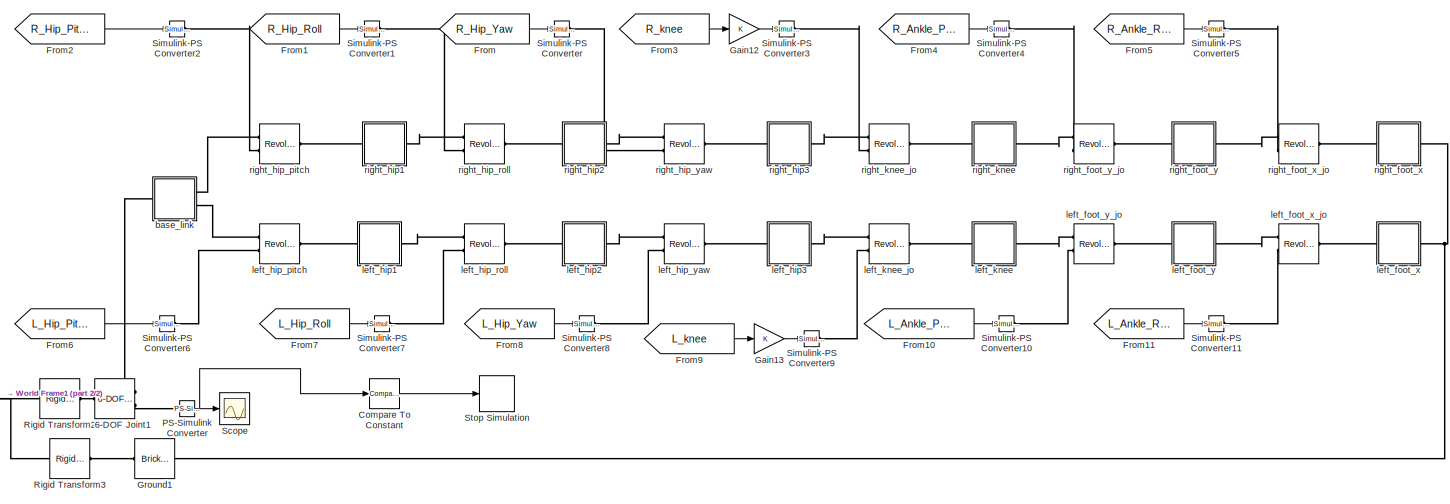
[diagram: root canvas - part 1/2, center side, full height]
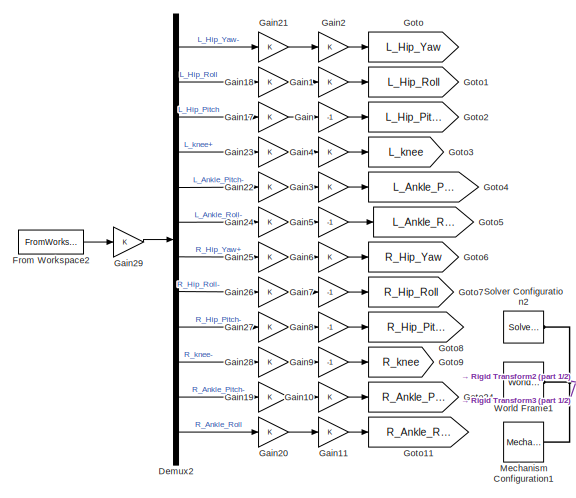
[diagram: root canvas - part 2/2, left side, full height]
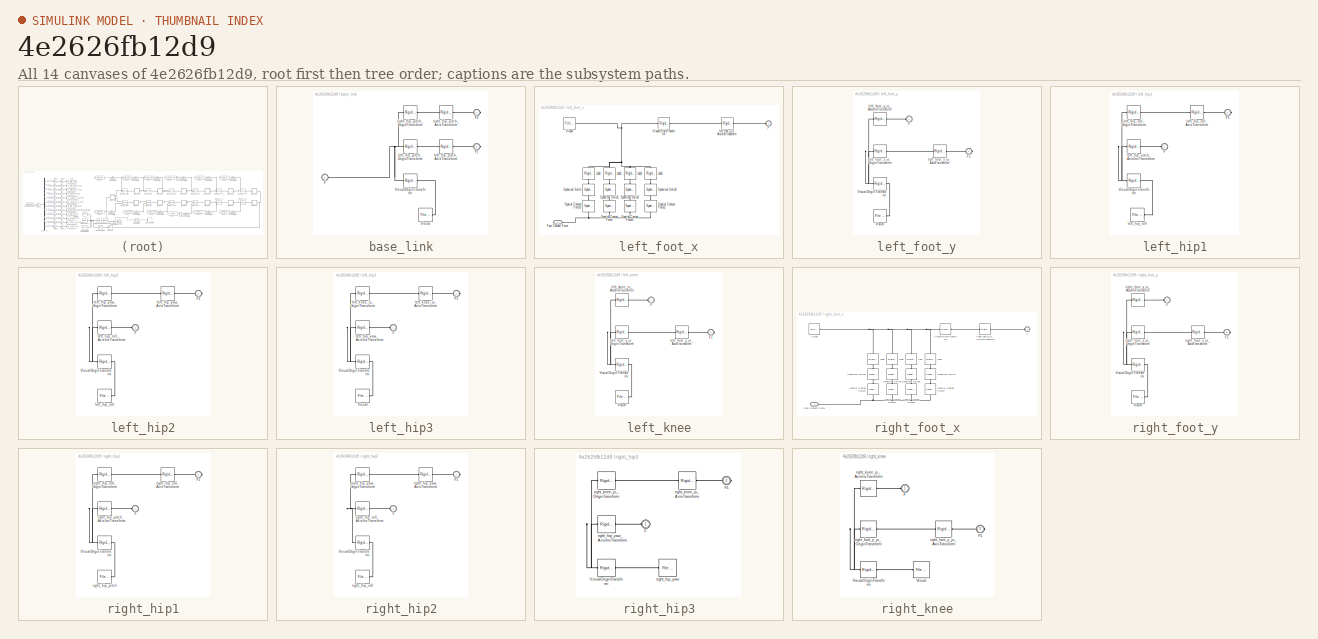
[diagram: thumbnail index - all 14 canvases of the model, root first then tree order]
MODEL slx_4e2626fb12d9
KIND model
CONFIG AbsTol = auto
CONFIG EnableMultiTasking = off
CONFIG FixedStep = auto
CONFIG MaxStep = auto
CONFIG MinStep = auto
CONFIG RelTol = 1e-3
CONFIG SampleTimeConstraint = Unconstrained
CONFIG SolverName = VariableStepAuto
CONFIG StartTime = 0.0
CONFIG StopTime = 10
BLOCK [Reference] 6-DOF Joint1  REF=sm_lib/Joints/6-DOF Joint
  Ports = [0, 0, 0, 0, 0, 1, 2]
  SourceBlock = sm_lib/Joints/6-DOF Joint
  SourceType = 6-DOF Joint
BLOCK [Reference] Compare To Constant  REF=simulink/Logic and Bit
Operations/Compare
To Constant
  Ports = [1, 1]
  SourceBlock = simulink/Logic and Bit\nOperations/Compare\nTo Constant
  SourceType = Compare To Constant
BLOCK [Demux] Demux2
  Outputs = 12
  Ports = [1, 12]
BLOCK [From] From
  GotoTag = R_Hip_Yaw
BLOCK [FromWorkspace] From Workspace2
  VariableName = q
BLOCK [From] From1
  GotoTag = R_Hip_Roll
BLOCK [From] From10
  GotoTag = L_Ankle_Pitch
BLOCK [From] From11
  GotoTag = L_Ankle_Roll
BLOCK [From] From2
  GotoTag = R_Hip_Pitch
BLOCK [From] From3
  GotoTag = R_knee
BLOCK [From] From4
  GotoTag = R_Ankle_Pitch
BLOCK [From] From5
  GotoTag = R_Ankle_Roll
BLOCK [From] From6
  GotoTag = L_Hip_Pitch
BLOCK [From] From7
  GotoTag = L_Hip_Roll
BLOCK [From] From8
  GotoTag = L_Hip_Yaw
BLOCK [From] From9
  GotoTag = L_knee
BLOCK [Gain] Gain
  Gain = -1
BLOCK [Gain] Gain1
BLOCK [Gain] Gain10
BLOCK [Gain] Gain11
BLOCK [Gain] Gain12
BLOCK [Gain] Gain13
BLOCK [Gain] Gain17
BLOCK [Gain] Gain18
BLOCK [Gain] Gain19
BLOCK [Gain] Gain2
BLOCK [Gain] Gain20
BLOCK [Gain] Gain21
BLOCK [Gain] Gain22
BLOCK [Gain] Gain23
BLOCK [Gain] Gain24
BLOCK [Gain] Gain25
BLOCK [Gain] Gain26
BLOCK [Gain] Gain27
BLOCK [Gain] Gain28
BLOCK [Gain] Gain29
BLOCK [Gain] Gain3
BLOCK [Gain] Gain4
BLOCK [Gain] Gain5
  Gain = -1
BLOCK [Gain] Gain6
BLOCK [Gain] Gain7
  Gain = -1
BLOCK [Gain] Gain8
  Gain = -1
BLOCK [Gain] Gain9
  Gain = -1
BLOCK [Goto] Goto
  GotoTag = L_Hip_Yaw
BLOCK [Goto] Goto1
  GotoTag = L_Hip_Roll
BLOCK [Goto] Goto11
  GotoTag = R_Ankle_Roll
BLOCK [Goto] Goto2
  GotoTag = L_Hip_Pitch
BLOCK [Goto] Goto24
  GotoTag = R_Ankle_Pitch
BLOCK [Goto] Goto3
  GotoTag = L_knee
BLOCK [Goto] Goto4
  GotoTag = L_Ankle_Pitch
BLOCK [Goto] Goto5
  GotoTag = L_Ankle_Roll
BLOCK [Goto] Goto6
  GotoTag = R_Hip_Yaw
BLOCK [Goto] Goto7
  GotoTag = R_Hip_Roll
BLOCK [Goto] Goto8
  GotoTag = R_Hip_Pitch
BLOCK [Goto] Goto9
  GotoTag = R_knee
BLOCK [Reference] Ground1  REF=sm_lib/Body Elements/Brick Solid
  NameLocation = top
  Ports = [0, 0, 0, 0, 0, 1, 1]
  SourceBlock = sm_lib/Body Elements/Brick Solid
  SourceType = Brick Solid
BLOCK [Reference] Mechanism Configuration1  REF=sm_lib/Utilities/Mechanism
Configuration
  Ports = [0, 0, 0, 0, 0, 0, 1]
  SourceBlock = sm_lib/Utilities/Mechanism\nConfiguration
  SourceType = Mechanism\nConfiguration
BLOCK [Reference] PS-Simulink Converter  REF=nesl_utility/PS-Simulink
Converter
  Ports = [0, 1, 0, 0, 0, 1]
  SourceBlock = nesl_utility/PS-Simulink\nConverter
  SourceType = PS-Simulink\nConverter
BLOCK [Reference] Rigid Transform2  REF=sm_lib/Frames and
Transforms/Rigid
Transform
  Ports = [0, 0, 0, 0, 0, 1, 1]
  SourceBlock = sm_lib/Frames and\nTransforms/Rigid\nTransform
  SourceType = Rigid\nTransform
BLOCK [Reference] Rigid Transform3  REF=sm_lib/Frames and
Transforms/Rigid
Transform
  Ports = [0, 0, 0, 0, 0, 1, 1]
  SourceBlock = sm_lib/Frames and\nTransforms/Rigid\nTransform
  SourceType = Rigid\nTransform
BLOCK [Scope] Scope
  Floating = off
  NumInputPorts = 1
  Ports = [1]
  ScopeSpecificationString = Simulink.scopes.TimeScopeBlockCfg('CurrentConfiguration', extmgr.ConfigurationSet(extmgr.Configuration('Core','General UI',true),extmgr.Configuration('Core','Source UI',true),extmgr.Configuration('Sources','WiredSimulink',true),extmgr.Configuration('Visuals','Time Domain',true,'SerializedDisplays',{struct('MinYLimReal','-0.04674','MaxYLimReal','0.00743','YLabelReal','','MinYLimMag','0.00000','MaxY...<+1442ch>
BLOCK [Reference] Simulink-PS Converter  REF=nesl_utility/Simulink-PS
Converter
  Ports = [1, 0, 0, 0, 0, 0, 1]
  SourceBlock = nesl_utility/Simulink-PS\nConverter
  SourceType = Simulink-PS\nConverter
BLOCK [Reference] Simulink-PS Converter1  REF=nesl_utility/Simulink-PS
Converter
  Ports = [1, 0, 0, 0, 0, 0, 1]
  SourceBlock = nesl_utility/Simulink-PS\nConverter
  SourceType = Simulink-PS\nConverter
BLOCK [Reference] Simulink-PS Converter10  REF=nesl_utility/Simulink-PS
Converter
  Ports = [1, 0, 0, 0, 0, 0, 1]
  SourceBlock = nesl_utility/Simulink-PS\nConverter
  SourceType = Simulink-PS\nConverter
BLOCK [Reference] Simulink-PS Converter11  REF=nesl_utility/Simulink-PS
Converter
  Ports = [1, 0, 0, 0, 0, 0, 1]
  SourceBlock = nesl_utility/Simulink-PS\nConverter
  SourceType = Simulink-PS\nConverter
BLOCK [Reference] Simulink-PS Converter2  REF=nesl_utility/Simulink-PS
Converter
  Ports = [1, 0, 0, 0, 0, 0, 1]
  SourceBlock = nesl_utility/Simulink-PS\nConverter
  SourceType = Simulink-PS\nConverter
BLOCK [Reference] Simulink-PS Converter3  REF=nesl_utility/Simulink-PS
Converter
  Ports = [1, 0, 0, 0, 0, 0, 1]
  SourceBlock = nesl_utility/Simulink-PS\nConverter
  SourceType = Simulink-PS\nConverter
BLOCK [Reference] Simulink-PS Converter4  REF=nesl_utility/Simulink-PS
Converter
  Ports = [1, 0, 0, 0, 0, 0, 1]
  SourceBlock = nesl_utility/Simulink-PS\nConverter
  SourceType = Simulink-PS\nConverter
BLOCK [Reference] Simulink-PS Converter5  REF=nesl_utility/Simulink-PS
Converter
  Ports = [1, 0, 0, 0, 0, 0, 1]
  SourceBlock = nesl_utility/Simulink-PS\nConverter
  SourceType = Simulink-PS\nConverter
BLOCK [Reference] Simulink-PS Converter6  REF=nesl_utility/Simulink-PS
Converter
  Ports = [1, 0, 0, 0, 0, 0, 1]
  SourceBlock = nesl_utility/Simulink-PS\nConverter
  SourceType = Simulink-PS\nConverter
BLOCK [Reference] Simulink-PS Converter7  REF=nesl_utility/Simulink-PS
Converter
  Ports = [1, 0, 0, 0, 0, 0, 1]
  SourceBlock = nesl_utility/Simulink-PS\nConverter
  SourceType = Simulink-PS\nConverter
BLOCK [Reference] Simulink-PS Converter8  REF=nesl_utility/Simulink-PS
Converter
  Ports = [1, 0, 0, 0, 0, 0, 1]
  SourceBlock = nesl_utility/Simulink-PS\nConverter
  SourceType = Simulink-PS\nConverter
BLOCK [Reference] Simulink-PS Converter9  REF=nesl_utility/Simulink-PS
Converter
  Ports = [1, 0, 0, 0, 0, 0, 1]
  SourceBlock = nesl_utility/Simulink-PS\nConverter
  SourceType = Simulink-PS\nConverter
BLOCK [Reference] Solver Configuration2  REF=nesl_utility/Solver
Configuration
  Ports = [0, 0, 0, 0, 0, 0, 1]
  SourceBlock = nesl_utility/Solver\nConfiguration
  SourceType = Solver\nConfiguration
BLOCK [Stop] Stop Simulation
BLOCK [Reference] World Frame1  REF=sm_lib/Frames and
Transforms/World Frame
  Ports = [0, 0, 0, 0, 0, 0, 1]
  SourceBlock = sm_lib/Frames and\nTransforms/World Frame
  SourceType = World Frame
BLOCK [SubSystem] base_link
  Ports = [0, 0, 0, 0, 0, 1, 2]
BLOCK [PMIOPort] base_link/F
  Side = Left
BLOCK [PMIOPort] base_link/F1
  Port = 3
  Side = Right
BLOCK [PMIOPort] base_link/F2
  Port = 2
  Side = Right
BLOCK [Reference] base_link/Visual  REF=sm_lib/Body Elements/File Solid
  Ports = [0, 0, 0, 0, 0, 0, 1]
  SourceBlock = sm_lib/Body Elements/File Solid
  SourceType = File Solid
BLOCK [Reference] base_link/VisualOriginTransform  REF=sm_lib/Frames and
Transforms/Rigid
Transform
  Ports = [0, 0, 0, 0, 0, 1, 1]
  SourceBlock = sm_lib/Frames and\nTransforms/Rigid\nTransform
  SourceType = Rigid\nTransform
BLOCK [Reference] base_link/left_hip_pitch_AxisTransform  REF=sm_lib/Frames and
Transforms/Rigid
Transform
  Ports = [0, 0, 0, 0, 0, 1, 1]
  SourceBlock = sm_lib/Frames and\nTransforms/Rigid\nTransform
  SourceType = Rigid\nTransform
BLOCK [Reference] base_link/left_hip_pitch_OriginTransform  REF=sm_lib/Frames and
Transforms/Rigid
Transform
  Ports = [0, 0, 0, 0, 0, 1, 1]
  SourceBlock = sm_lib/Frames and\nTransforms/Rigid\nTransform
  SourceType = Rigid\nTransform
BLOCK [Reference] base_link/right_hip_pitch_AxisTransform  REF=sm_lib/Frames and
Transforms/Rigid
Transform
  Ports = [0, 0, 0, 0, 0, 1, 1]
  SourceBlock = sm_lib/Frames and\nTransforms/Rigid\nTransform
  SourceType = Rigid\nTransform
BLOCK [Reference] base_link/right_hip_pitch_OriginTransform  REF=sm_lib/Frames and
Transforms/Rigid
Transform
  Ports = [0, 0, 0, 0, 0, 1, 1]
  SourceBlock = sm_lib/Frames and\nTransforms/Rigid\nTransform
  SourceType = Rigid\nTransform
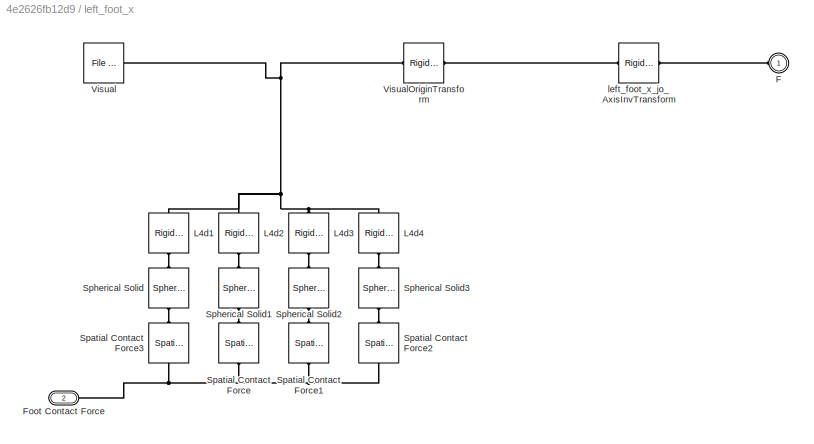
BLOCK [SubSystem] left_foot_x
  Ports = [0, 0, 0, 0, 0, 1, 1]
BLOCK [PMIOPort] left_foot_x/F
  Side = Left
BLOCK [PMIOPort] left_foot_x/Foot Contact Force
  Port = 2
  Side = Right
BLOCK [Reference] left_foot_x/L4d1  REF=sm_lib/Frames and
Transforms/Rigid
Transform
  NameLocation = left
  Ports = [0, 0, 0, 0, 0, 1, 1]
  SourceBlock = sm_lib/Frames and\nTransforms/Rigid\nTransform
  SourceType = Rigid\nTransform
BLOCK [Reference] left_foot_x/L4d2  REF=sm_lib/Frames and
Transforms/Rigid
Transform
  NameLocation = left
  Ports = [0, 0, 0, 0, 0, 1, 1]
  SourceBlock = sm_lib/Frames and\nTransforms/Rigid\nTransform
  SourceType = Rigid\nTransform
BLOCK [Reference] left_foot_x/L4d3  REF=sm_lib/Frames and
Transforms/Rigid
Transform
  NameLocation = left
  Ports = [0, 0, 0, 0, 0, 1, 1]
  SourceBlock = sm_lib/Frames and\nTransforms/Rigid\nTransform
  SourceType = Rigid\nTransform
BLOCK [Reference] left_foot_x/L4d4  REF=sm_lib/Frames and
Transforms/Rigid
Transform
  NameLocation = left
  Ports = [0, 0, 0, 0, 0, 1, 1]
  SourceBlock = sm_lib/Frames and\nTransforms/Rigid\nTransform
  SourceType = Rigid\nTransform
BLOCK [Reference] left_foot_x/Spatial Contact Force  REF=sm_lib/Forces and
Torques/Spatial
Contact Force
  NameLocation = right
  Ports = [0, 0, 0, 0, 0, 1, 1]
  SourceBlock = sm_lib/Forces and\nTorques/Spatial\nContact Force
  SourceType = Spatial\nContact Force
BLOCK [Reference] left_foot_x/Spatial Contact Force1  REF=sm_lib/Forces and
Torques/Spatial
Contact Force
  NameLocation = right
  Ports = [0, 0, 0, 0, 0, 1, 1]
  SourceBlock = sm_lib/Forces and\nTorques/Spatial\nContact Force
  SourceType = Spatial\nContact Force
BLOCK [Reference] left_foot_x/Spatial Contact Force2  REF=sm_lib/Forces and
Torques/Spatial
Contact Force
  NameLocation = right
  Ports = [0, 0, 0, 0, 0, 1, 1]
  SourceBlock = sm_lib/Forces and\nTorques/Spatial\nContact Force
  SourceType = Spatial\nContact Force
BLOCK [Reference] left_foot_x/Spatial Contact Force3  REF=sm_lib/Forces and
Torques/Spatial
Contact Force
  NameLocation = right
  Ports = [0, 0, 0, 0, 0, 1, 1]
  SourceBlock = sm_lib/Forces and\nTorques/Spatial\nContact Force
  SourceType = Spatial\nContact Force
BLOCK [Reference] left_foot_x/Spherical Solid  REF=sm_lib/Body Elements/Spherical Solid
  NameLocation = right
  Ports = [0, 0, 0, 0, 0, 1, 1]
  SourceBlock = sm_lib/Body Elements/Spherical Solid
  SourceType = Spherical Solid
BLOCK [Reference] left_foot_x/Spherical Solid1  REF=sm_lib/Body Elements/Spherical Solid
  NameLocation = right
  Ports = [0, 0, 0, 0, 0, 1, 1]
  SourceBlock = sm_lib/Body Elements/Spherical Solid
  SourceType = Spherical Solid
BLOCK [Reference] left_foot_x/Spherical Solid2  REF=sm_lib/Body Elements/Spherical Solid
  NameLocation = right
  Ports = [0, 0, 0, 0, 0, 1, 1]
  SourceBlock = sm_lib/Body Elements/Spherical Solid
  SourceType = Spherical Solid
BLOCK [Reference] left_foot_x/Spherical Solid3  REF=sm_lib/Body Elements/Spherical Solid
  NameLocation = right
  Ports = [0, 0, 0, 0, 0, 1, 1]
  SourceBlock = sm_lib/Body Elements/Spherical Solid
  SourceType = Spherical Solid
BLOCK [Reference] left_foot_x/Visual  REF=sm_lib/Body Elements/File Solid
  Ports = [0, 0, 0, 0, 0, 0, 1]
  SourceBlock = sm_lib/Body Elements/File Solid
  SourceType = File Solid
BLOCK [Reference] left_foot_x/VisualOriginTransform  REF=sm_lib/Frames and
Transforms/Rigid
Transform
  NameLocation = top
  Ports = [0, 0, 0, 0, 0, 1, 1]
  SourceBlock = sm_lib/Frames and\nTransforms/Rigid\nTransform
  SourceType = Rigid\nTransform
BLOCK [Reference] left_foot_x/left_foot_x_jo_AxisInvTransform  REF=sm_lib/Frames and
Transforms/Rigid
Transform
  Ports = [0, 0, 0, 0, 0, 1, 1]
  SourceBlock = sm_lib/Frames and\nTransforms/Rigid\nTransform
  SourceType = Rigid\nTransform
BLOCK [Reference] left_foot_x_jo  REF=sm_lib/Joints/Revolute Joint
  Ports = [0, 0, 0, 0, 0, 2, 1]
  SourceBlock = sm_lib/Joints/Revolute Joint
  SourceType = Revolute Joint
BLOCK [SubSystem] left_foot_y
  Ports = [0, 0, 0, 0, 0, 1, 1]
BLOCK [PMIOPort] left_foot_y/F
  Side = Left
BLOCK [PMIOPort] left_foot_y/F1
  Port = 2
  Side = Right
BLOCK [Reference] left_foot_y/Visual  REF=sm_lib/Body Elements/File Solid
  Ports = [0, 0, 0, 0, 0, 0, 1]
  SourceBlock = sm_lib/Body Elements/File Solid
  SourceType = File Solid
BLOCK [Reference] left_foot_y/VisualOriginTransform  REF=sm_lib/Frames and
Transforms/Rigid
Transform
  Ports = [0, 0, 0, 0, 0, 1, 1]
  SourceBlock = sm_lib/Frames and\nTransforms/Rigid\nTransform
  SourceType = Rigid\nTransform
BLOCK [Reference] left_foot_y/left_foot_x_jo_AxisTransform  REF=sm_lib/Frames and
Transforms/Rigid
Transform
  Ports = [0, 0, 0, 0, 0, 1, 1]
  SourceBlock = sm_lib/Frames and\nTransforms/Rigid\nTransform
  SourceType = Rigid\nTransform
BLOCK [Reference] left_foot_y/left_foot_x_jo_OriginTransform  REF=sm_lib/Frames and
Transforms/Rigid
Transform
  Ports = [0, 0, 0, 0, 0, 1, 1]
  SourceBlock = sm_lib/Frames and\nTransforms/Rigid\nTransform
  SourceType = Rigid\nTransform
BLOCK [Reference] left_foot_y/left_foot_y_jo_AxisInvTransform  REF=sm_lib/Frames and
Transforms/Rigid
Transform
  Ports = [0, 0, 0, 0, 0, 1, 1]
  SourceBlock = sm_lib/Frames and\nTransforms/Rigid\nTransform
  SourceType = Rigid\nTransform
BLOCK [Reference] left_foot_y_jo  REF=sm_lib/Joints/Revolute Joint
  Ports = [0, 0, 0, 0, 0, 2, 1]
  SourceBlock = sm_lib/Joints/Revolute Joint
  SourceType = Revolute Joint
BLOCK [SubSystem] left_hip1
  Ports = [0, 0, 0, 0, 0, 1, 1]
BLOCK [PMIOPort] left_hip1/F
  Side = Left
BLOCK [PMIOPort] left_hip1/F1
  Port = 2
  Side = Right
BLOCK [Reference] left_hip1/VisualOriginTransform  REF=sm_lib/Frames and
Transforms/Rigid
Transform
  Ports = [0, 0, 0, 0, 0, 1, 1]
  SourceBlock = sm_lib/Frames and\nTransforms/Rigid\nTransform
  SourceType = Rigid\nTransform
BLOCK [Reference] left_hip1/left_hip_pitch_AxisInvTransform  REF=sm_lib/Frames and
Transforms/Rigid
Transform
  Ports = [0, 0, 0, 0, 0, 1, 1]
  SourceBlock = sm_lib/Frames and\nTransforms/Rigid\nTransform
  SourceType = Rigid\nTransform
BLOCK [Reference] left_hip1/left_hip_roll  REF=sm_lib/Body Elements/File Solid
  Ports = [0, 0, 0, 0, 0, 0, 1]
  SourceBlock = sm_lib/Body Elements/File Solid
  SourceType = File Solid
BLOCK [Reference] left_hip1/left_hip_roll_AxisTransform  REF=sm_lib/Frames and
Transforms/Rigid
Transform
  Ports = [0, 0, 0, 0, 0, 1, 1]
  SourceBlock = sm_lib/Frames and\nTransforms/Rigid\nTransform
  SourceType = Rigid\nTransform
BLOCK [Reference] left_hip1/left_hip_roll_OriginTransform  REF=sm_lib/Frames and
Transforms/Rigid
Transform
  Ports = [0, 0, 0, 0, 0, 1, 1]
  SourceBlock = sm_lib/Frames and\nTransforms/Rigid\nTransform
  SourceType = Rigid\nTransform
BLOCK [SubSystem] left_hip2
  Ports = [0, 0, 0, 0, 0, 1, 1]
BLOCK [PMIOPort] left_hip2/F
  Side = Left
BLOCK [PMIOPort] left_hip2/F1
  Port = 2
  Side = Right
BLOCK [Reference] left_hip2/VisualOriginTransform  REF=sm_lib/Frames and
Transforms/Rigid
Transform
  Ports = [0, 0, 0, 0, 0, 1, 1]
  SourceBlock = sm_lib/Frames and\nTransforms/Rigid\nTransform
  SourceType = Rigid\nTransform
BLOCK [Reference] left_hip2/left_hip_roll  REF=sm_lib/Body Elements/File Solid
  Ports = [0, 0, 0, 0, 0, 0, 1]
  SourceBlock = sm_lib/Body Elements/File Solid
  SourceType = File Solid
BLOCK [Reference] left_hip2/left_hip_roll_AxisInvTransform  REF=sm_lib/Frames and
Transforms/Rigid
Transform
  Ports = [0, 0, 0, 0, 0, 1, 1]
  SourceBlock = sm_lib/Frames and\nTransforms/Rigid\nTransform
  SourceType = Rigid\nTransform
BLOCK [Reference] left_hip2/left_hip_yaw_AxisTransform  REF=sm_lib/Frames and
Transforms/Rigid
Transform
  Ports = [0, 0, 0, 0, 0, 1, 1]
  SourceBlock = sm_lib/Frames and\nTransforms/Rigid\nTransform
  SourceType = Rigid\nTransform
BLOCK [Reference] left_hip2/left_hip_yaw_OriginTransform  REF=sm_lib/Frames and
Transforms/Rigid
Transform
  Ports = [0, 0, 0, 0, 0, 1, 1]
  SourceBlock = sm_lib/Frames and\nTransforms/Rigid\nTransform
  SourceType = Rigid\nTransform
BLOCK [SubSystem] left_hip3
  Ports = [0, 0, 0, 0, 0, 1, 1]
BLOCK [PMIOPort] left_hip3/F
  Side = Left
BLOCK [PMIOPort] left_hip3/F1
  Port = 2
  Side = Right
BLOCK [Reference] left_hip3/Visual  REF=sm_lib/Body Elements/File Solid
  Ports = [0, 0, 0, 0, 0, 0, 1]
  SourceBlock = sm_lib/Body Elements/File Solid
  SourceType = File Solid
BLOCK [Reference] left_hip3/VisualOriginTransform  REF=sm_lib/Frames and
Transforms/Rigid
Transform
  Ports = [0, 0, 0, 0, 0, 1, 1]
  SourceBlock = sm_lib/Frames and\nTransforms/Rigid\nTransform
  SourceType = Rigid\nTransform
BLOCK [Reference] left_hip3/left_hip_yaw_AxisInvTransform  REF=sm_lib/Frames and
Transforms/Rigid
Transform
  Ports = [0, 0, 0, 0, 0, 1, 1]
  SourceBlock = sm_lib/Frames and\nTransforms/Rigid\nTransform
  SourceType = Rigid\nTransform
BLOCK [Reference] left_hip3/left_knee_jo_AxisTransform  REF=sm_lib/Frames and
Transforms/Rigid
Transform
  Ports = [0, 0, 0, 0, 0, 1, 1]
  SourceBlock = sm_lib/Frames and\nTransforms/Rigid\nTransform
  SourceType = Rigid\nTransform
BLOCK [Reference] left_hip3/left_knee_jo_OriginTransform  REF=sm_lib/Frames and
Transforms/Rigid
Transform
  Ports = [0, 0, 0, 0, 0, 1, 1]
  SourceBlock = sm_lib/Frames and\nTransforms/Rigid\nTransform
  SourceType = Rigid\nTransform
BLOCK [Reference] left_hip_pitch  REF=sm_lib/Joints/Revolute Joint
  Ports = [0, 0, 0, 0, 0, 2, 1]
  SourceBlock = sm_lib/Joints/Revolute Joint
  SourceType = Revolute Joint
BLOCK [Reference] left_hip_roll  REF=sm_lib/Joints/Revolute Joint
  Ports = [0, 0, 0, 0, 0, 2, 1]
  SourceBlock = sm_lib/Joints/Revolute Joint
  SourceType = Revolute Joint
BLOCK [Reference] left_hip_yaw  REF=sm_lib/Joints/Revolute Joint
  Ports = [0, 0, 0, 0, 0, 2, 1]
  SourceBlock = sm_lib/Joints/Revolute Joint
  SourceType = Revolute Joint
BLOCK [SubSystem] left_knee
  Ports = [0, 0, 0, 0, 0, 1, 1]
BLOCK [PMIOPort] left_knee/F
  Side = Left
BLOCK [PMIOPort] left_knee/F1
  Port = 2
  Side = Right
BLOCK [Reference] left_knee/Visual  REF=sm_lib/Body Elements/File Solid
  Ports = [0, 0, 0, 0, 0, 0, 1]
  SourceBlock = sm_lib/Body Elements/File Solid
  SourceType = File Solid
BLOCK [Reference] left_knee/VisualOriginTransform  REF=sm_lib/Frames and
Transforms/Rigid
Transform
  Ports = [0, 0, 0, 0, 0, 1, 1]
  SourceBlock = sm_lib/Frames and\nTransforms/Rigid\nTransform
  SourceType = Rigid\nTransform
BLOCK [Reference] left_knee/left_foot_y_jo_AxisTransform  REF=sm_lib/Frames and
Transforms/Rigid
Transform
  Ports = [0, 0, 0, 0, 0, 1, 1]
  SourceBlock = sm_lib/Frames and\nTransforms/Rigid\nTransform
  SourceType = Rigid\nTransform
BLOCK [Reference] left_knee/left_foot_y_jo_OriginTransform  REF=sm_lib/Frames and
Transforms/Rigid
Transform
  Ports = [0, 0, 0, 0, 0, 1, 1]
  SourceBlock = sm_lib/Frames and\nTransforms/Rigid\nTransform
  SourceType = Rigid\nTransform
BLOCK [Reference] left_knee/left_knee_jo_AxisInvTransform  REF=sm_lib/Frames and
Transforms/Rigid
Transform
  Ports = [0, 0, 0, 0, 0, 1, 1]
  SourceBlock = sm_lib/Frames and\nTransforms/Rigid\nTransform
  SourceType = Rigid\nTransform
BLOCK [Reference] left_knee_jo  REF=sm_lib/Joints/Revolute Joint
  Ports = [0, 0, 0, 0, 0, 2, 1]
  SourceBlock = sm_lib/Joints/Revolute Joint
  SourceType = Revolute Joint
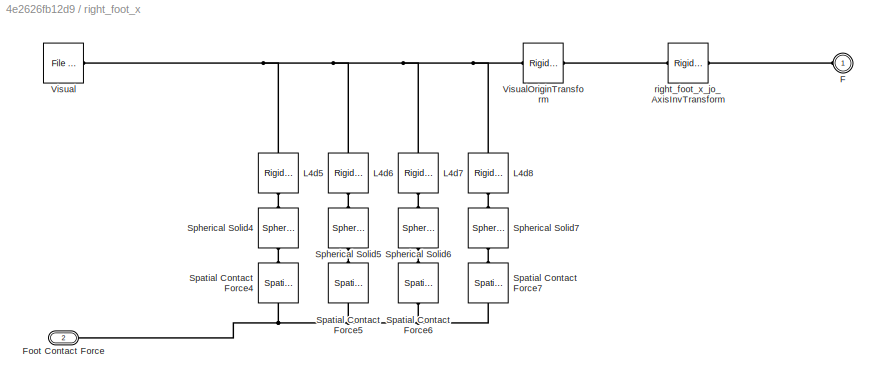
BLOCK [SubSystem] right_foot_x
  Ports = [0, 0, 0, 0, 0, 1, 1]
BLOCK [PMIOPort] right_foot_x/F
  Side = Left
BLOCK [PMIOPort] right_foot_x/Foot Contact Force
  Port = 2
  Side = Right
BLOCK [Reference] right_foot_x/L4d5  REF=sm_lib/Frames and
Transforms/Rigid
Transform
  NameLocation = left
  Ports = [0, 0, 0, 0, 0, 1, 1]
  SourceBlock = sm_lib/Frames and\nTransforms/Rigid\nTransform
  SourceType = Rigid\nTransform
BLOCK [Reference] right_foot_x/L4d6  REF=sm_lib/Frames and
Transforms/Rigid
Transform
  NameLocation = left
  Ports = [0, 0, 0, 0, 0, 1, 1]
  SourceBlock = sm_lib/Frames and\nTransforms/Rigid\nTransform
  SourceType = Rigid\nTransform
BLOCK [Reference] right_foot_x/L4d7  REF=sm_lib/Frames and
Transforms/Rigid
Transform
  NameLocation = left
  Ports = [0, 0, 0, 0, 0, 1, 1]
  SourceBlock = sm_lib/Frames and\nTransforms/Rigid\nTransform
  SourceType = Rigid\nTransform
BLOCK [Reference] right_foot_x/L4d8  REF=sm_lib/Frames and
Transforms/Rigid
Transform
  NameLocation = left
  Ports = [0, 0, 0, 0, 0, 1, 1]
  SourceBlock = sm_lib/Frames and\nTransforms/Rigid\nTransform
  SourceType = Rigid\nTransform
BLOCK [Reference] right_foot_x/Spatial Contact Force4  REF=sm_lib/Forces and
Torques/Spatial
Contact Force
  NameLocation = right
  Ports = [0, 0, 0, 0, 0, 1, 1]
  SourceBlock = sm_lib/Forces and\nTorques/Spatial\nContact Force
  SourceType = Spatial\nContact Force
BLOCK [Reference] right_foot_x/Spatial Contact Force5  REF=sm_lib/Forces and
Torques/Spatial
Contact Force
  NameLocation = right
  Ports = [0, 0, 0, 0, 0, 1, 1]
  SourceBlock = sm_lib/Forces and\nTorques/Spatial\nContact Force
  SourceType = Spatial\nContact Force
BLOCK [Reference] right_foot_x/Spatial Contact Force6  REF=sm_lib/Forces and
Torques/Spatial
Contact Force
  NameLocation = right
  Ports = [0, 0, 0, 0, 0, 1, 1]
  SourceBlock = sm_lib/Forces and\nTorques/Spatial\nContact Force
  SourceType = Spatial\nContact Force
BLOCK [Reference] right_foot_x/Spatial Contact Force7  REF=sm_lib/Forces and
Torques/Spatial
Contact Force
  NameLocation = right
  Ports = [0, 0, 0, 0, 0, 1, 1]
  SourceBlock = sm_lib/Forces and\nTorques/Spatial\nContact Force
  SourceType = Spatial\nContact Force
BLOCK [Reference] right_foot_x/Spherical Solid4  REF=sm_lib/Body Elements/Spherical Solid
  NameLocation = right
  Ports = [0, 0, 0, 0, 0, 1, 1]
  SourceBlock = sm_lib/Body Elements/Spherical Solid
  SourceType = Spherical Solid
BLOCK [Reference] right_foot_x/Spherical Solid5  REF=sm_lib/Body Elements/Spherical Solid
  NameLocation = right
  Ports = [0, 0, 0, 0, 0, 1, 1]
  SourceBlock = sm_lib/Body Elements/Spherical Solid
  SourceType = Spherical Solid
BLOCK [Reference] right_foot_x/Spherical Solid6  REF=sm_lib/Body Elements/Spherical Solid
  NameLocation = right
  Ports = [0, 0, 0, 0, 0, 1, 1]
  SourceBlock = sm_lib/Body Elements/Spherical Solid
  SourceType = Spherical Solid
BLOCK [Reference] right_foot_x/Spherical Solid7  REF=sm_lib/Body Elements/Spherical Solid
  NameLocation = right
  Ports = [0, 0, 0, 0, 0, 1, 1]
  SourceBlock = sm_lib/Body Elements/Spherical Solid
  SourceType = Spherical Solid
BLOCK [Reference] right_foot_x/Visual  REF=sm_lib/Body Elements/File Solid
  Ports = [0, 0, 0, 0, 0, 0, 1]
  SourceBlock = sm_lib/Body Elements/File Solid
  SourceType = File Solid
BLOCK [Reference] right_foot_x/VisualOriginTransform  REF=sm_lib/Frames and
Transforms/Rigid
Transform
  NameLocation = top
  Ports = [0, 0, 0, 0, 0, 1, 1]
  SourceBlock = sm_lib/Frames and\nTransforms/Rigid\nTransform
  SourceType = Rigid\nTransform
BLOCK [Reference] right_foot_x/right_foot_x_jo_AxisInvTransform  REF=sm_lib/Frames and
Transforms/Rigid
Transform
  Ports = [0, 0, 0, 0, 0, 1, 1]
  SourceBlock = sm_lib/Frames and\nTransforms/Rigid\nTransform
  SourceType = Rigid\nTransform
BLOCK [Reference] right_foot_x_jo  REF=sm_lib/Joints/Revolute Joint
  Ports = [0, 0, 0, 0, 0, 2, 1]
  SourceBlock = sm_lib/Joints/Revolute Joint
  SourceType = Revolute Joint
BLOCK [SubSystem] right_foot_y
  Ports = [0, 0, 0, 0, 0, 1, 1]
BLOCK [PMIOPort] right_foot_y/F
  Side = Left
BLOCK [PMIOPort] right_foot_y/F1
  Port = 2
  Side = Right
BLOCK [Reference] right_foot_y/Visual  REF=sm_lib/Body Elements/File Solid
  Ports = [0, 0, 0, 0, 0, 0, 1]
  SourceBlock = sm_lib/Body Elements/File Solid
  SourceType = File Solid
BLOCK [Reference] right_foot_y/VisualOriginTransform  REF=sm_lib/Frames and
Transforms/Rigid
Transform
  Ports = [0, 0, 0, 0, 0, 1, 1]
  SourceBlock = sm_lib/Frames and\nTransforms/Rigid\nTransform
  SourceType = Rigid\nTransform
BLOCK [Reference] right_foot_y/right_foot_x_jo_AxisTransform  REF=sm_lib/Frames and
Transforms/Rigid
Transform
  Ports = [0, 0, 0, 0, 0, 1, 1]
  SourceBlock = sm_lib/Frames and\nTransforms/Rigid\nTransform
  SourceType = Rigid\nTransform
BLOCK [Reference] right_foot_y/right_foot_x_jo_OriginTransform  REF=sm_lib/Frames and
Transforms/Rigid
Transform
  Ports = [0, 0, 0, 0, 0, 1, 1]
  SourceBlock = sm_lib/Frames and\nTransforms/Rigid\nTransform
  SourceType = Rigid\nTransform
BLOCK [Reference] right_foot_y/right_foot_y_jo_AxisInvTransform  REF=sm_lib/Frames and
Transforms/Rigid
Transform
  Ports = [0, 0, 0, 0, 0, 1, 1]
  SourceBlock = sm_lib/Frames and\nTransforms/Rigid\nTransform
  SourceType = Rigid\nTransform
BLOCK [Reference] right_foot_y_jo  REF=sm_lib/Joints/Revolute Joint
  Ports = [0, 0, 0, 0, 0, 2, 1]
  SourceBlock = sm_lib/Joints/Revolute Joint
  SourceType = Revolute Joint
BLOCK [SubSystem] right_hip1
  Ports = [0, 0, 0, 0, 0, 1, 1]
BLOCK [PMIOPort] right_hip1/F
  Side = Left
BLOCK [PMIOPort] right_hip1/F1
  Port = 2
  Side = Right
BLOCK [Reference] right_hip1/VisualOriginTransform  REF=sm_lib/Frames and
Transforms/Rigid
Transform
  Ports = [0, 0, 0, 0, 0, 1, 1]
  SourceBlock = sm_lib/Frames and\nTransforms/Rigid\nTransform
  SourceType = Rigid\nTransform
BLOCK [Reference] right_hip1/right_hip_pitch  REF=sm_lib/Body Elements/File Solid
  Ports = [0, 0, 0, 0, 0, 0, 1]
  SourceBlock = sm_lib/Body Elements/File Solid
  SourceType = File Solid
BLOCK [Reference] right_hip1/right_hip_pitch_AxisInvTransform  REF=sm_lib/Frames and
Transforms/Rigid
Transform
  Ports = [0, 0, 0, 0, 0, 1, 1]
  SourceBlock = sm_lib/Frames and\nTransforms/Rigid\nTransform
  SourceType = Rigid\nTransform
BLOCK [Reference] right_hip1/right_hip_roll_AxisTransform  REF=sm_lib/Frames and
Transforms/Rigid
Transform
  Ports = [0, 0, 0, 0, 0, 1, 1]
  SourceBlock = sm_lib/Frames and\nTransforms/Rigid\nTransform
  SourceType = Rigid\nTransform
BLOCK [Reference] right_hip1/right_hip_roll_OriginTransform  REF=sm_lib/Frames and
Transforms/Rigid
Transform
  Ports = [0, 0, 0, 0, 0, 1, 1]
  SourceBlock = sm_lib/Frames and\nTransforms/Rigid\nTransform
  SourceType = Rigid\nTransform
BLOCK [SubSystem] right_hip2
  Ports = [0, 0, 0, 0, 0, 1, 1]
BLOCK [PMIOPort] right_hip2/F
  Side = Left
BLOCK [PMIOPort] right_hip2/F1
  Port = 2
  Side = Right
BLOCK [Reference] right_hip2/VisualOriginTransform  REF=sm_lib/Frames and
Transforms/Rigid
Transform
  Ports = [0, 0, 0, 0, 0, 1, 1]
  SourceBlock = sm_lib/Frames and\nTransforms/Rigid\nTransform
  SourceType = Rigid\nTransform
BLOCK [Reference] right_hip2/right_hip_roll  REF=sm_lib/Body Elements/File Solid
  Ports = [0, 0, 0, 0, 0, 0, 1]
  SourceBlock = sm_lib/Body Elements/File Solid
  SourceType = File Solid
BLOCK [Reference] right_hip2/right_hip_roll_AxisInvTransform  REF=sm_lib/Frames and
Transforms/Rigid
Transform
  Ports = [0, 0, 0, 0, 0, 1, 1]
  SourceBlock = sm_lib/Frames and\nTransforms/Rigid\nTransform
  SourceType = Rigid\nTransform
BLOCK [Reference] right_hip2/right_hip_yaw_AxisTransform  REF=sm_lib/Frames and
Transforms/Rigid
Transform
  Ports = [0, 0, 0, 0, 0, 1, 1]
  SourceBlock = sm_lib/Frames and\nTransforms/Rigid\nTransform
  SourceType = Rigid\nTransform
BLOCK [Reference] right_hip2/right_hip_yaw_OriginTransform  REF=sm_lib/Frames and
Transforms/Rigid
Transform
  Ports = [0, 0, 0, 0, 0, 1, 1]
  SourceBlock = sm_lib/Frames and\nTransforms/Rigid\nTransform
  SourceType = Rigid\nTransform
BLOCK [SubSystem] right_hip3
  Ports = [0, 0, 0, 0, 0, 1, 1]
BLOCK [PMIOPort] right_hip3/F
  Side = Left
BLOCK [PMIOPort] right_hip3/F1
  Port = 2
  Side = Right
BLOCK [Reference] right_hip3/VisualOriginTransform  REF=sm_lib/Frames and
Transforms/Rigid
Transform
  Ports = [0, 0, 0, 0, 0, 1, 1]
  SourceBlock = sm_lib/Frames and\nTransforms/Rigid\nTransform
  SourceType = Rigid\nTransform
BLOCK [Reference] right_hip3/right_hip_yaw  REF=sm_lib/Body Elements/File Solid
  NameLocation = top
  Ports = [0, 0, 0, 0, 0, 0, 1]
  SourceBlock = sm_lib/Body Elements/File Solid
  SourceType = File Solid
BLOCK [Reference] right_hip3/right_hip_yaw_AxisInvTransform  REF=sm_lib/Frames and
Transforms/Rigid
Transform
  Ports = [0, 0, 0, 0, 0, 1, 1]
  SourceBlock = sm_lib/Frames and\nTransforms/Rigid\nTransform
  SourceType = Rigid\nTransform
BLOCK [Reference] right_hip3/right_knee_jo_AxisTransform  REF=sm_lib/Frames and
Transforms/Rigid
Transform
  Ports = [0, 0, 0, 0, 0, 1, 1]
  SourceBlock = sm_lib/Frames and\nTransforms/Rigid\nTransform
  SourceType = Rigid\nTransform
BLOCK [Reference] right_hip3/right_knee_jo_OriginTransform  REF=sm_lib/Frames and
Transforms/Rigid
Transform
  Ports = [0, 0, 0, 0, 0, 1, 1]
  SourceBlock = sm_lib/Frames and\nTransforms/Rigid\nTransform
  SourceType = Rigid\nTransform
BLOCK [Reference] right_hip_pitch  REF=sm_lib/Joints/Revolute Joint
  Ports = [0, 0, 0, 0, 0, 2, 1]
  SourceBlock = sm_lib/Joints/Revolute Joint
  SourceType = Revolute Joint
BLOCK [Reference] right_hip_roll  REF=sm_lib/Joints/Revolute Joint
  Ports = [0, 0, 0, 0, 0, 2, 1]
  SourceBlock = sm_lib/Joints/Revolute Joint
  SourceType = Revolute Joint
BLOCK [Reference] right_hip_yaw  REF=sm_lib/Joints/Revolute Joint
  Ports = [0, 0, 0, 0, 0, 2, 1]
  SourceBlock = sm_lib/Joints/Revolute Joint
  SourceType = Revolute Joint
BLOCK [SubSystem] right_knee
  Ports = [0, 0, 0, 0, 0, 1, 1]
BLOCK [PMIOPort] right_knee/F
  Side = Left
BLOCK [PMIOPort] right_knee/F1
  Port = 2
  Side = Right
BLOCK [Reference] right_knee/Visual  REF=sm_lib/Body Elements/File Solid
  NameLocation = top
  Ports = [0, 0, 0, 0, 0, 0, 1]
  SourceBlock = sm_lib/Body Elements/File Solid
  SourceType = File Solid
BLOCK [Reference] right_knee/VisualOriginTransform  REF=sm_lib/Frames and
Transforms/Rigid
Transform
  Ports = [0, 0, 0, 0, 0, 1, 1]
  SourceBlock = sm_lib/Frames and\nTransforms/Rigid\nTransform
  SourceType = Rigid\nTransform
BLOCK [Reference] right_knee/right_foot_y_jo_AxisTransform  REF=sm_lib/Frames and
Transforms/Rigid
Transform
  Ports = [0, 0, 0, 0, 0, 1, 1]
  SourceBlock = sm_lib/Frames and\nTransforms/Rigid\nTransform
  SourceType = Rigid\nTransform
BLOCK [Reference] right_knee/right_foot_y_jo_OriginTransform  REF=sm_lib/Frames and
Transforms/Rigid
Transform
  Ports = [0, 0, 0, 0, 0, 1, 1]
  SourceBlock = sm_lib/Frames and\nTransforms/Rigid\nTransform
  SourceType = Rigid\nTransform
BLOCK [Reference] right_knee/right_knee_jo_AxisInvTransform  REF=sm_lib/Frames and
Transforms/Rigid
Transform
  Ports = [0, 0, 0, 0, 0, 1, 1]
  SourceBlock = sm_lib/Frames and\nTransforms/Rigid\nTransform
  SourceType = Rigid\nTransform
BLOCK [Reference] right_knee_jo  REF=sm_lib/Joints/Revolute Joint
  Ports = [0, 0, 0, 0, 0, 2, 1]
  SourceBlock = sm_lib/Joints/Revolute Joint
  SourceType = Revolute Joint
LINE Compare To Constant:1 -> Stop Simulation:1
LINE Demux2:1 -> Gain21:1
LINE Demux2:10 -> Gain28:1
LINE Demux2:11 -> Gain19:1
LINE Demux2:12 -> Gain20:1
LINE Demux2:2 -> Gain18:1
LINE Demux2:3 -> Gain17:1
LINE Demux2:4 -> Gain23:1
LINE Demux2:5 -> Gain22:1
LINE Demux2:6 -> Gain24:1
LINE Demux2:7 -> Gain25:1
LINE Demux2:8 -> Gain26:1
LINE Demux2:9 -> Gain27:1
LINE From Workspace2:1 -> Gain29:1
LINE From10:1 -> Simulink-PS Converter10:1
LINE From11:1 -> Simulink-PS Converter11:1
LINE From1:1 -> Simulink-PS Converter1:1
LINE From2:1 -> Simulink-PS Converter2:1
LINE From3:1 -> Gain12:1
LINE From4:1 -> Simulink-PS Converter4:1
LINE From5:1 -> Simulink-PS Converter5:1
LINE From6:1 -> Simulink-PS Converter6:1
LINE From7:1 -> Simulink-PS Converter7:1
LINE From8:1 -> Simulink-PS Converter8:1
LINE From9:1 -> Gain13:1
LINE From:1 -> Simulink-PS Converter:1
LINE Gain10:1 -> Goto24:1
LINE Gain11:1 -> Goto11:1
LINE Gain12:1 -> Simulink-PS Converter3:1
LINE Gain13:1 -> Simulink-PS Converter9:1
LINE Gain17:1 -> Gain:1
LINE Gain18:1 -> Gain1:1
LINE Gain19:1 -> Gain10:1
LINE Gain1:1 -> Goto1:1
LINE Gain20:1 -> Gain11:1
LINE Gain21:1 -> Gain2:1
LINE Gain22:1 -> Gain3:1
LINE Gain23:1 -> Gain4:1
LINE Gain24:1 -> Gain5:1
LINE Gain25:1 -> Gain6:1
LINE Gain26:1 -> Gain7:1
LINE Gain27:1 -> Gain8:1
LINE Gain28:1 -> Gain9:1
LINE Gain29:1 -> Demux2:1
LINE Gain2:1 -> Goto:1
LINE Gain3:1 -> Goto4:1
LINE Gain4:1 -> Goto3:1
LINE Gain5:1 -> Goto5:1
LINE Gain6:1 -> Goto6:1
LINE Gain7:1 -> Goto7:1
LINE Gain8:1 -> Goto8:1
LINE Gain9:1 -> Goto9:1
LINE Gain:1 -> Goto2:1
NET PS-Simulink Converter:1 -> Compare To Constant:1, Scope:1
PLINE 6-DOF Joint1:LConn1 -- Rigid Transform2:RConn1
PLINE 6-DOF Joint1:RConn1 -- base_link:LConn1
PLINE 6-DOF Joint1:RConn2 -- PS-Simulink Converter:LConn1
PNET net1: Ground1:LConn1 -- left_foot_x:RConn1 -- right_foot_x:RConn1
PLINE Ground1:RConn1 -- Rigid Transform3:RConn1
PNET net2: Mechanism Configuration1:RConn1 -- Rigid Transform2:LConn1 -- Rigid Transform3:LConn1 -- Solver Configuration2:RConn1 -- World Frame1:RConn1
PLINE Simulink-PS Converter10:RConn1 -- left_foot_y_jo:LConn2
PLINE Simulink-PS Converter11:RConn1 -- left_foot_x_jo:LConn2
PLINE Simulink-PS Converter1:RConn1 -- right_hip_roll:LConn2
PLINE Simulink-PS Converter2:RConn1 -- right_hip_pitch:LConn2
PLINE Simulink-PS Converter3:RConn1 -- right_knee_jo:LConn2
PLINE Simulink-PS Converter4:RConn1 -- right_foot_y_jo:LConn2
PLINE Simulink-PS Converter5:RConn1 -- right_foot_x_jo:LConn2
PLINE Simulink-PS Converter6:RConn1 -- left_hip_pitch:LConn2
PLINE Simulink-PS Converter7:RConn1 -- left_hip_roll:LConn2
PLINE Simulink-PS Converter8:RConn1 -- left_hip_yaw:LConn2
PLINE Simulink-PS Converter9:RConn1 -- left_knee_jo:LConn2
PLINE Simulink-PS Converter:RConn1 -- right_hip_yaw:LConn2
PLINE base_link/F1:RConn1 -- base_link/left_hip_pitch_AxisTransform:RConn1
PLINE base_link/F2:RConn1 -- base_link/right_hip_pitch_AxisTransform:RConn1
PNET net3: base_link/F:RConn1 -- base_link/VisualOriginTransform:LConn1 -- base_link/left_hip_pitch_OriginTransform:LConn1 -- base_link/right_hip_pitch_OriginTransform:LConn1
PLINE base_link/Visual:RConn1 -- base_link/VisualOriginTransform:RConn1
PLINE base_link/left_hip_pitch_AxisTransform:LConn1 -- base_link/left_hip_pitch_OriginTransform:RConn1
PLINE base_link/right_hip_pitch_AxisTransform:LConn1 -- base_link/right_hip_pitch_OriginTransform:RConn1
PLINE base_link:RConn1 -- right_hip_pitch:LConn1
PLINE base_link:RConn2 -- left_hip_pitch:LConn1
PLINE left_foot_x/F:RConn1 -- left_foot_x/left_foot_x_jo_AxisInvTransform:RConn1
PNET net4: left_foot_x/Foot Contact Force:RConn1 -- left_foot_x/Spatial Contact Force1:LConn1 -- left_foot_x/Spatial Contact Force2:LConn1 -- left_foot_x/Spatial Contact Force3:LConn1 -- left_foot_x/Spatial Contact Force:LConn1
PNET net5: left_foot_x/L4d1:LConn1 -- left_foot_x/L4d2:LConn1 -- left_foot_x/L4d3:LConn1 -- left_foot_x/L4d4:LConn1 -- left_foot_x/Visual:RConn1 -- left_foot_x/VisualOriginTransform:RConn1
PLINE left_foot_x/L4d1:RConn1 -- left_foot_x/Spherical Solid:RConn1
PLINE left_foot_x/L4d2:RConn1 -- left_foot_x/Spherical Solid1:RConn1
PLINE left_foot_x/L4d3:RConn1 -- left_foot_x/Spherical Solid2:RConn1
PLINE left_foot_x/L4d4:RConn1 -- left_foot_x/Spherical Solid3:RConn1
PLINE left_foot_x/Spatial Contact Force1:RConn1 -- left_foot_x/Spherical Solid2:LConn1
PLINE left_foot_x/Spatial Contact Force2:RConn1 -- left_foot_x/Spherical Solid3:LConn1
PLINE left_foot_x/Spatial Contact Force3:RConn1 -- left_foot_x/Spherical Solid:LConn1
PLINE left_foot_x/Spatial Contact Force:RConn1 -- left_foot_x/Spherical Solid1:LConn1
PLINE left_foot_x/VisualOriginTransform:LConn1 -- left_foot_x/left_foot_x_jo_AxisInvTransform:LConn1
PLINE left_foot_x:LConn1 -- left_foot_x_jo:RConn1
PLINE left_foot_x_jo:LConn1 -- left_foot_y:RConn1
PLINE left_foot_y/F1:RConn1 -- left_foot_y/left_foot_x_jo_AxisTransform:RConn1
PLINE left_foot_y/F:RConn1 -- left_foot_y/left_foot_y_jo_AxisInvTransform:RConn1
PLINE left_foot_y/Visual:RConn1 -- left_foot_y/VisualOriginTransform:RConn1
PNET net6: left_foot_y/VisualOriginTransform:LConn1 -- left_foot_y/left_foot_x_jo_OriginTransform:LConn1 -- left_foot_y/left_foot_y_jo_AxisInvTransform:LConn1
PLINE left_foot_y/left_foot_x_jo_AxisTransform:LConn1 -- left_foot_y/left_foot_x_jo_OriginTransform:RConn1
PLINE left_foot_y:LConn1 -- left_foot_y_jo:RConn1
PLINE left_foot_y_jo:LConn1 -- left_knee:RConn1
PLINE left_hip1/F1:RConn1 -- left_hip1/left_hip_roll_AxisTransform:RConn1
PLINE left_hip1/F:RConn1 -- left_hip1/left_hip_pitch_AxisInvTransform:RConn1
PNET net7: left_hip1/VisualOriginTransform:LConn1 -- left_hip1/left_hip_pitch_AxisInvTransform:LConn1 -- left_hip1/left_hip_roll_OriginTransform:LConn1
PLINE left_hip1/VisualOriginTransform:RConn1 -- left_hip1/left_hip_roll:RConn1
PLINE left_hip1/left_hip_roll_AxisTransform:LConn1 -- left_hip1/left_hip_roll_OriginTransform:RConn1
PLINE left_hip1:LConn1 -- left_hip_pitch:RConn1
PLINE left_hip1:RConn1 -- left_hip_roll:LConn1
PLINE left_hip2/F1:RConn1 -- left_hip2/left_hip_yaw_AxisTransform:RConn1
PLINE left_hip2/F:RConn1 -- left_hip2/left_hip_roll_AxisInvTransform:RConn1
PNET net8: left_hip2/VisualOriginTransform:LConn1 -- left_hip2/left_hip_roll_AxisInvTransform:LConn1 -- left_hip2/left_hip_yaw_OriginTransform:LConn1
PLINE left_hip2/VisualOriginTransform:RConn1 -- left_hip2/left_hip_roll:RConn1
PLINE left_hip2/left_hip_yaw_AxisTransform:LConn1 -- left_hip2/left_hip_yaw_OriginTransform:RConn1
PLINE left_hip2:LConn1 -- left_hip_roll:RConn1
PLINE left_hip2:RConn1 -- left_hip_yaw:LConn1
PLINE left_hip3/F1:RConn1 -- left_hip3/left_knee_jo_AxisTransform:RConn1
PLINE left_hip3/F:RConn1 -- left_hip3/left_hip_yaw_AxisInvTransform:RConn1
PLINE left_hip3/Visual:RConn1 -- left_hip3/VisualOriginTransform:RConn1
PNET net9: left_hip3/VisualOriginTransform:LConn1 -- left_hip3/left_hip_yaw_AxisInvTransform:LConn1 -- left_hip3/left_knee_jo_OriginTransform:LConn1
PLINE left_hip3/left_knee_jo_AxisTransform:LConn1 -- left_hip3/left_knee_jo_OriginTransform:RConn1
PLINE left_hip3:LConn1 -- left_hip_yaw:RConn1
PLINE left_hip3:RConn1 -- left_knee_jo:LConn1
PLINE left_knee/F1:RConn1 -- left_knee/left_foot_y_jo_AxisTransform:RConn1
PLINE left_knee/F:RConn1 -- left_knee/left_knee_jo_AxisInvTransform:RConn1
PLINE left_knee/Visual:RConn1 -- left_knee/VisualOriginTransform:RConn1
PNET net10: left_knee/VisualOriginTransform:LConn1 -- left_knee/left_foot_y_jo_OriginTransform:LConn1 -- left_knee/left_knee_jo_AxisInvTransform:LConn1
PLINE left_knee/left_foot_y_jo_AxisTransform:LConn1 -- left_knee/left_foot_y_jo_OriginTransform:RConn1
PLINE left_knee:LConn1 -- left_knee_jo:RConn1
PLINE right_foot_x/F:RConn1 -- right_foot_x/right_foot_x_jo_AxisInvTransform:RConn1
PNET net11: right_foot_x/Foot Contact Force:RConn1 -- right_foot_x/Spatial Contact Force4:LConn1 -- right_foot_x/Spatial Contact Force5:LConn1 -- right_foot_x/Spatial Contact Force6:LConn1 -- right_foot_x/Spatial Contact Force7:LConn1
PNET net12: right_foot_x/L4d5:LConn1 -- right_foot_x/L4d6:LConn1 -- right_foot_x/L4d7:LConn1 -- right_foot_x/L4d8:LConn1 -- right_foot_x/Visual:RConn1 -- right_foot_x/VisualOriginTransform:RConn1
PLINE right_foot_x/L4d5:RConn1 -- right_foot_x/Spherical Solid4:RConn1
PLINE right_foot_x/L4d6:RConn1 -- right_foot_x/Spherical Solid5:RConn1
PLINE right_foot_x/L4d7:RConn1 -- right_foot_x/Spherical Solid6:RConn1
PLINE right_foot_x/L4d8:RConn1 -- right_foot_x/Spherical Solid7:RConn1
PLINE right_foot_x/Spatial Contact Force4:RConn1 -- right_foot_x/Spherical Solid4:LConn1
PLINE right_foot_x/Spatial Contact Force5:RConn1 -- right_foot_x/Spherical Solid5:LConn1
PLINE right_foot_x/Spatial Contact Force6:RConn1 -- right_foot_x/Spherical Solid6:LConn1
PLINE right_foot_x/Spatial Contact Force7:RConn1 -- right_foot_x/Spherical Solid7:LConn1
PLINE right_foot_x/VisualOriginTransform:LConn1 -- right_foot_x/right_foot_x_jo_AxisInvTransform:LConn1
PLINE right_foot_x:LConn1 -- right_foot_x_jo:RConn1
PLINE right_foot_x_jo:LConn1 -- right_foot_y:RConn1
PLINE right_foot_y/F1:RConn1 -- right_foot_y/right_foot_x_jo_AxisTransform:RConn1
PLINE right_foot_y/F:RConn1 -- right_foot_y/right_foot_y_jo_AxisInvTransform:RConn1
PLINE right_foot_y/Visual:RConn1 -- right_foot_y/VisualOriginTransform:RConn1
PNET net13: right_foot_y/VisualOriginTransform:LConn1 -- right_foot_y/right_foot_x_jo_OriginTransform:LConn1 -- right_foot_y/right_foot_y_jo_AxisInvTransform:LConn1
PLINE right_foot_y/right_foot_x_jo_AxisTransform:LConn1 -- right_foot_y/right_foot_x_jo_OriginTransform:RConn1
PLINE right_foot_y:LConn1 -- right_foot_y_jo:RConn1
PLINE right_foot_y_jo:LConn1 -- right_knee:RConn1
PLINE right_hip1/F1:RConn1 -- right_hip1/right_hip_roll_AxisTransform:RConn1
PLINE right_hip1/F:RConn1 -- right_hip1/right_hip_pitch_AxisInvTransform:RConn1
PNET net14: right_hip1/VisualOriginTransform:LConn1 -- right_hip1/right_hip_pitch_AxisInvTransform:LConn1 -- right_hip1/right_hip_roll_OriginTransform:LConn1
PLINE right_hip1/VisualOriginTransform:RConn1 -- right_hip1/right_hip_pitch:RConn1
PLINE right_hip1/right_hip_roll_AxisTransform:LConn1 -- right_hip1/right_hip_roll_OriginTransform:RConn1
PLINE right_hip1:LConn1 -- right_hip_pitch:RConn1
PLINE right_hip1:RConn1 -- right_hip_roll:LConn1
PLINE right_hip2/F1:RConn1 -- right_hip2/right_hip_yaw_AxisTransform:RConn1
PLINE right_hip2/F:RConn1 -- right_hip2/right_hip_roll_AxisInvTransform:RConn1
PNET net15: right_hip2/VisualOriginTransform:LConn1 -- right_hip2/right_hip_roll_AxisInvTransform:LConn1 -- right_hip2/right_hip_yaw_OriginTransform:LConn1
PLINE right_hip2/VisualOriginTransform:RConn1 -- right_hip2/right_hip_roll:RConn1
PLINE right_hip2/right_hip_yaw_AxisTransform:LConn1 -- right_hip2/right_hip_yaw_OriginTransform:RConn1
PLINE right_hip2:LConn1 -- right_hip_roll:RConn1
PLINE right_hip2:RConn1 -- right_hip_yaw:LConn1
PLINE right_hip3/F1:RConn1 -- right_hip3/right_knee_jo_AxisTransform:RConn1
PLINE right_hip3/F:RConn1 -- right_hip3/right_hip_yaw_AxisInvTransform:RConn1
PNET net16: right_hip3/VisualOriginTransform:LConn1 -- right_hip3/right_hip_yaw_AxisInvTransform:LConn1 -- right_hip3/right_knee_jo_OriginTransform:LConn1
PLINE right_hip3/VisualOriginTransform:RConn1 -- right_hip3/right_hip_yaw:RConn1
PLINE right_hip3/right_knee_jo_AxisTransform:LConn1 -- right_hip3/right_knee_jo_OriginTransform:RConn1
PLINE right_hip3:LConn1 -- right_hip_yaw:RConn1
PLINE right_hip3:RConn1 -- right_knee_jo:LConn1
PLINE right_knee/F1:RConn1 -- right_knee/right_foot_y_jo_AxisTransform:RConn1
PLINE right_knee/F:RConn1 -- right_knee/right_knee_jo_AxisInvTransform:RConn1
PLINE right_knee/Visual:RConn1 -- right_knee/VisualOriginTransform:RConn1
PNET net17: right_knee/VisualOriginTransform:LConn1 -- right_knee/right_foot_y_jo_OriginTransform:LConn1 -- right_knee/right_knee_jo_AxisInvTransform:LConn1
PLINE right_knee/right_foot_y_jo_AxisTransform:LConn1 -- right_knee/right_foot_y_jo_OriginTransform:RConn1
PLINE right_knee:LConn1 -- right_knee_jo:RConn1
note: NET lines group one-source signal fan-out (src -> all destinations, sorted); 1:1 wires keep LINE; PNET lines group multi-terminal physical nets as a canonical sorted terminal list (undirected conserving connections); 2-terminal nets keep the pairwise PLINE form
